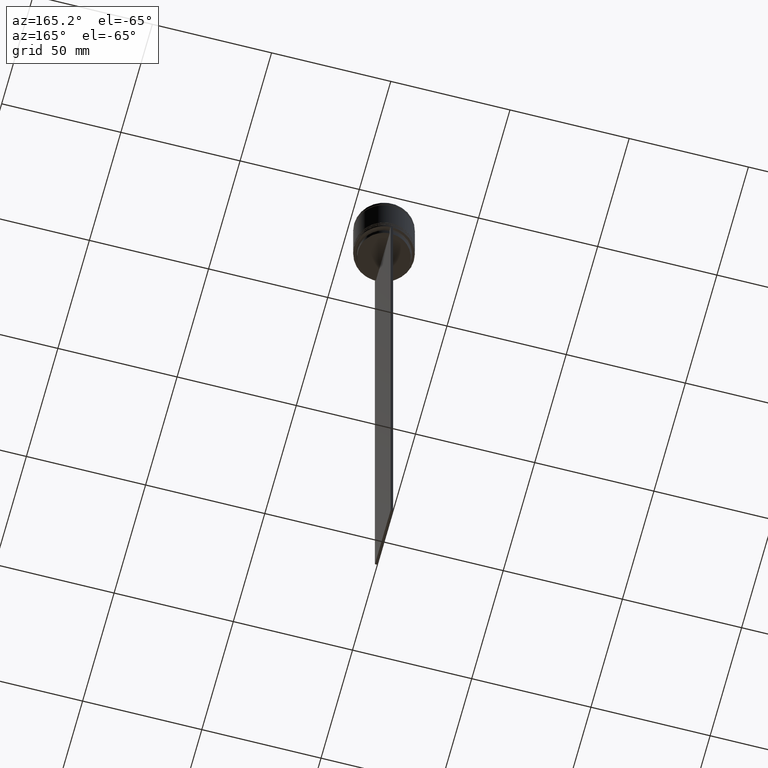
[diagram: clean part render]
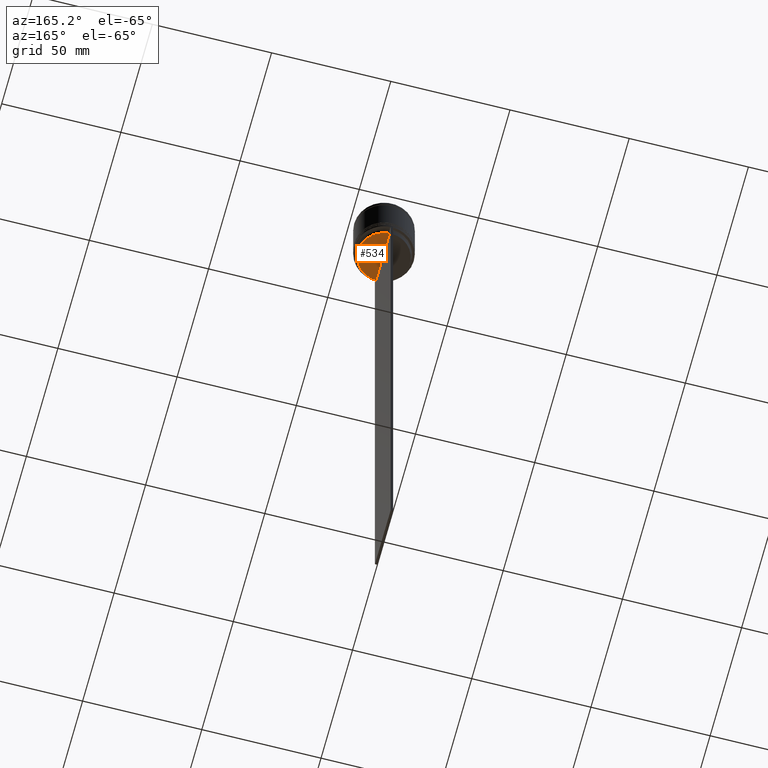
[diagram: same view with one face highlighted and labeled with its STEP entity id]
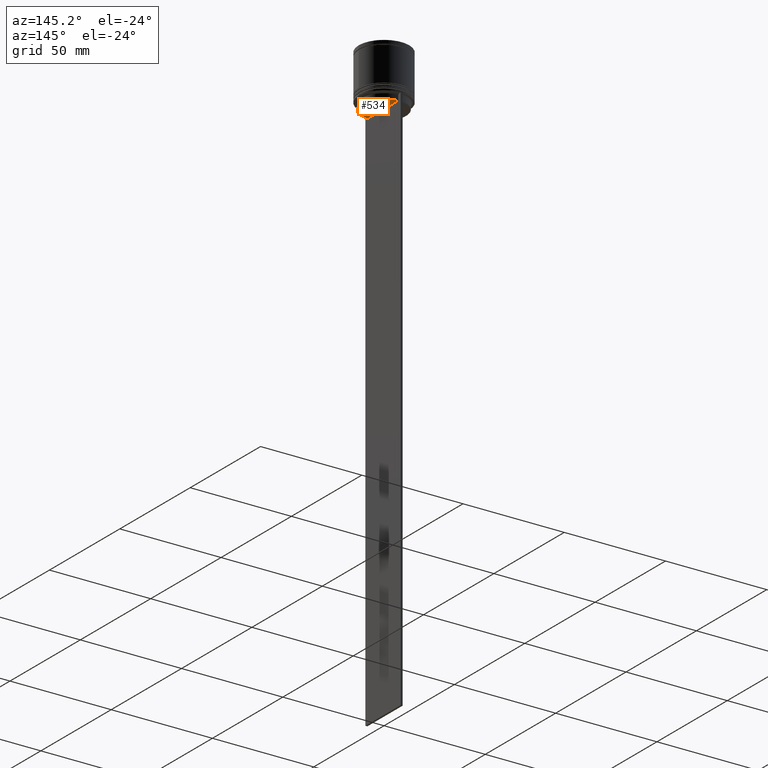
[diagram: same view with one face highlighted and labeled with its STEP entity id]
A machine part, auxiliary view. The second image highlights one B-rep face of the part: STEP entity #534.
A second angle (auxiliary view) of the same face is appended — the face is thin or edge-on in the first view.
In plain terms, the highlighted planar face has unit normal (0, -0, 1).
Its self-contained STEP definition (entity closure, byte-faithful):
#23 = AXIS2_PLACEMENT_3D ( 'NONE', #1568, #118, #1874 ) ;
#36 = CIRCLE ( 'NONE', #338, 10.90000000000000924 ) ;
#59 = VERTEX_POINT ( 'NONE', #114 ) ;
#111 = EDGE_CURVE ( 'NONE', #59, #990, #669, .T. ) ;
#114 = CARTESIAN_POINT ( 'NONE',  ( 0.5000000000000000000, 10.88852607105296855, -25.50000000000000000 ) ) ;
#118 = DIRECTION ( 'NONE',  ( -0.000000000000000000, -0.000000000000000000, 1.000000000000000000 ) ) ;
#287 = DIRECTION ( 'NONE',  ( -0.000000000000000000, -0.000000000000000000, 1.000000000000000000 ) ) ;
#338 = AXIS2_PLACEMENT_3D ( 'NONE', #2059, #287, #923 ) ;
#462 = EDGE_CURVE ( 'NONE', #990, #594, #36, .T. ) ;
#485 = DIRECTION ( 'NONE',  ( 1.000000000000000000, 0.000000000000000000, 0.000000000000000000 ) ) ;
#534 = ADVANCED_FACE ( 'NONE', ( #1470 ), #964, .F. ) ;
#594 = VERTEX_POINT ( 'NONE', #974 ) ;
#667 = CARTESIAN_POINT ( 'NONE',  ( 0.000000000000000000, 10.90000000000000924, -25.50000000000000000 ) ) ;
#669 = LINE ( 'NONE', #1144, #2028 ) ;
#792 = EDGE_LOOP ( 'NONE', ( #1095, #863, #2001 ) ) ;
#863 = ORIENTED_EDGE ( 'NONE', *, *, #2064, .F. ) ;
#923 = DIRECTION ( 'NONE',  ( 1.000000000000000000, 0.000000000000000000, 0.000000000000000000 ) ) ;
#964 = PLANE ( 'NONE',  #1350 ) ;
#974 = CARTESIAN_POINT ( 'NONE',  ( 10.90000000000000924, 0.000000000000000000, -25.50000000000000000 ) ) ;
#990 = VERTEX_POINT ( 'NONE', #1275 ) ;
#1095 = ORIENTED_EDGE ( 'NONE', *, *, #111, .F. ) ;
#1144 = CARTESIAN_POINT ( 'NONE',  ( 0.5000000000000000000, 10.90000000000000924, -25.50000000000000000 ) ) ;
#1275 = CARTESIAN_POINT ( 'NONE',  ( 0.5000000000000000000, -10.88852607105296855, -25.50000000000000000 ) ) ;
#1350 = AXIS2_PLACEMENT_3D ( 'NONE', #667, #1800, #485 ) ;
#1470 = FACE_OUTER_BOUND ( 'NONE', #792, .T. ) ;
#1568 = CARTESIAN_POINT ( 'NONE',  ( 0.000000000000000000, 0.000000000000000000, -25.50000000000000000 ) ) ;
#1745 = CIRCLE ( 'NONE', #23, 10.90000000000000924 ) ;
#1800 = DIRECTION ( 'NONE',  ( 0.000000000000000000, -0.000000000000000000, 1.000000000000000000 ) ) ;
#1814 = DIRECTION ( 'NONE',  ( 0.000000000000000000, -1.000000000000000000, 0.000000000000000000 ) ) ;
#1874 = DIRECTION ( 'NONE',  ( 1.000000000000000000, 0.000000000000000000, 0.000000000000000000 ) ) ;
#2001 = ORIENTED_EDGE ( 'NONE', *, *, #462, .F. ) ;
#2028 = VECTOR ( 'NONE', #1814, 1000.000000000000000 ) ;
#2059 = CARTESIAN_POINT ( 'NONE',  ( 0.000000000000000000, 0.000000000000000000, -25.50000000000000000 ) ) ;
#2064 = EDGE_CURVE ( 'NONE', #594, #59, #1745, .T. ) ;